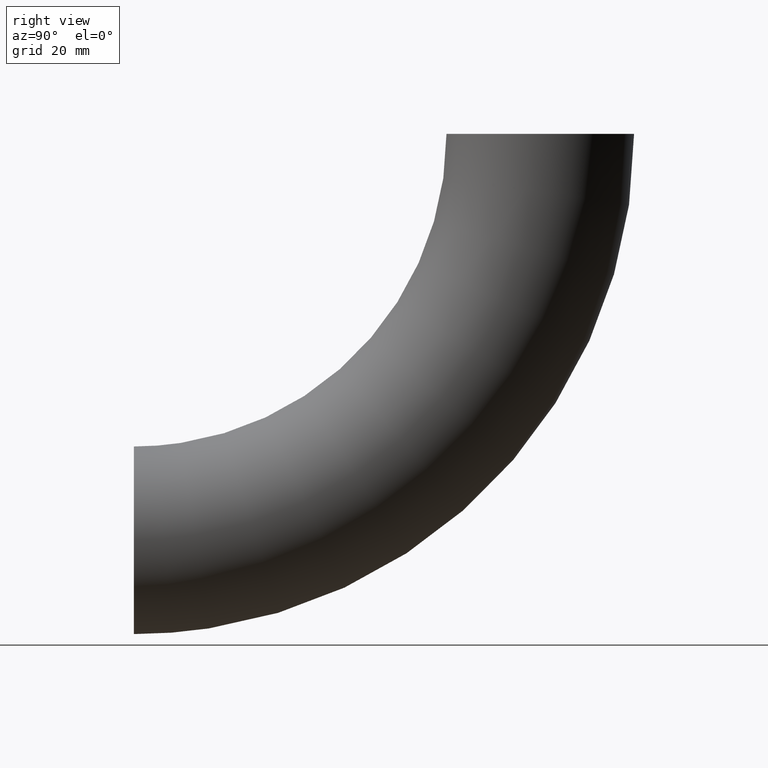
[diagram: clean part render]
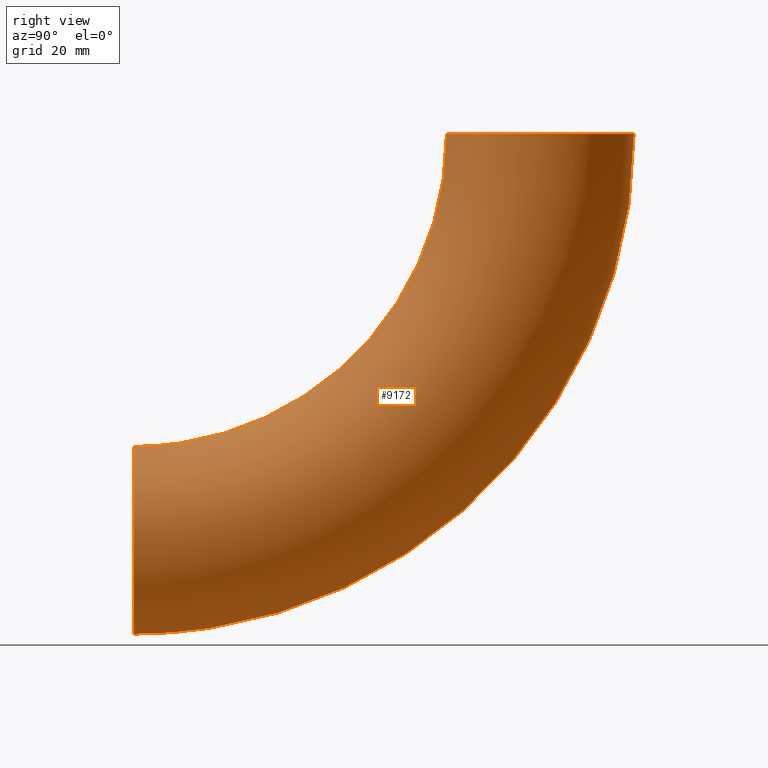
[diagram: same view with one face highlighted and labeled with its STEP entity id]
A machine part, right view. The second image highlights one B-rep face of the part: STEP entity #9172.
In plain terms, the highlighted toroidal blend (fillet) surface has major radius 73 mm and minor (blend) radius 16.85 mm.
Its self-contained STEP definition (entity closure, byte-faithful):
#442 = CARTESIAN_POINT ( 'NONE',  ( 0.000000000000000000, 73.00000000000000000, -4.469960816887838430E-15 ) ) ;
#563 = VERTEX_POINT ( 'NONE', #5980 ) ;
#787 = CIRCLE ( 'NONE', #3352, 16.85000000000000497 ) ;
#1192 = DIRECTION ( 'NONE',  ( 0.000000000000000000, 0.000000000000000000, 1.000000000000000000 ) ) ;
#1644 = CARTESIAN_POINT ( 'NONE',  ( 0.000000000000000000, 0.000000000000000000, -56.14999999999999147 ) ) ;
#2100 = ORIENTED_EDGE ( 'NONE', *, *, #7352, .T. ) ;
#3066 = FACE_OUTER_BOUND ( 'NONE', #8769, .T. ) ;
#3262 = VERTEX_POINT ( 'NONE', #1644 ) ;
#3352 = AXIS2_PLACEMENT_3D ( 'NONE', #3808, #5564, #1192 ) ;
#3808 = CARTESIAN_POINT ( 'NONE',  ( 0.000000000000000000, 0.000000000000000000, -73.00000000000000000 ) ) ;
#4458 = EDGE_LOOP ( 'NONE', ( #2100 ) ) ;
#4556 = TOROIDAL_SURFACE ( 'NONE', #9974, 73.00000000000000000, 16.85000000000000142 ) ;
#5126 = EDGE_CURVE ( 'NONE', #563, #563, #7480, .T. ) ;
#5564 = DIRECTION ( 'NONE',  ( 0.000000000000000000, 1.000000000000000000, 0.000000000000000000 ) ) ;
#5980 = CARTESIAN_POINT ( 'NONE',  ( 0.000000000000000000, 56.14999999999999147, -3.438195888606193308E-15 ) ) ;
#6487 = DIRECTION ( 'NONE',  ( 0.000000000000000000, 6.123233995736766036E-17, 1.000000000000000000 ) ) ;
#6874 = DIRECTION ( 'NONE',  ( -1.000000000000000000, -0.000000000000000000, -0.000000000000000000 ) ) ;
#7352 = EDGE_CURVE ( 'NONE', #3262, #3262, #787, .T. ) ;
#7382 = FACE_OUTER_BOUND ( 'NONE', #4458, .T. ) ;
#7442 = DIRECTION ( 'NONE',  ( 0.000000000000000000, -1.000000000000000000, 6.123233995736764803E-17 ) ) ;
#7480 = CIRCLE ( 'NONE', #7609, 16.85000000000000497 ) ;
#7609 = AXIS2_PLACEMENT_3D ( 'NONE', #442, #6487, #7442 ) ;
#8646 = CARTESIAN_POINT ( 'NONE',  ( 0.000000000000000000, 0.000000000000000000, 0.000000000000000000 ) ) ;
#8769 = EDGE_LOOP ( 'NONE', ( #9502 ) ) ;
#9172 = ADVANCED_FACE ( 'NONE', ( #3066, #7382 ), #4556, .T. ) ;
#9447 = DIRECTION ( 'NONE',  ( 0.000000000000000000, 0.000000000000000000, 1.000000000000000000 ) ) ;
#9502 = ORIENTED_EDGE ( 'NONE', *, *, #5126, .F. ) ;
#9974 = AXIS2_PLACEMENT_3D ( 'NONE', #8646, #6874, #9447 ) ;